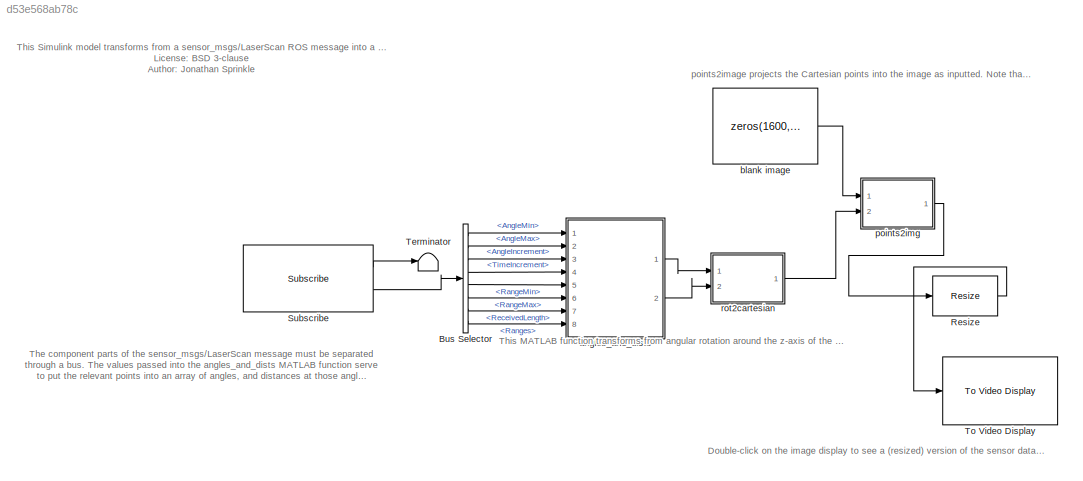
MODEL slx_d53e568ab78c
KIND model
CONFIG AbsTol = auto
CONFIG FixedStep = auto
CONFIG MaxStep = auto
CONFIG MinStep = auto
CONFIG RelTol = 1e-3
CONFIG SampleTimeConstraint = Unconstrained
CONFIG Solver = FixedStepAuto
CONFIG SolverMode = Auto
CONFIG SolverName = FixedStepAuto
CONFIG StartTime = 0.0
CONFIG StopTime = inf
WORKSPACE source: MAT-file member
WORKSPACE SL_ROS_VariableLengthArrays_MaxSizes: struct (value not decoded)
BLOCK [BusSelector] Bus Selector
  OutputSignals = AngleMin,AngleMax,AngleIncrement,TimeIncrement,RangeMin,RangeMax,Ranges_SL_Info.ReceivedLength,Ranges
  Ports = [1, 8]
BLOCK [Reference] Resize  REF=visiongeotforms/Resize
  Ports = [1, 1]
  SourceBlock = visiongeotforms/Resize
  SourceType = Resize
BLOCK [Reference] Subscribe  REF=robotlib/Subscribe
  Ports = [0, 2]
  SourceBlock = robotlib/Subscribe
  SourceLibraryInfo = This block requires Robotics System Toolbox
  SourceType = ROS Subscribe
BLOCK [Terminator] Terminator
BLOCK [Reference] To Video Display  REF=visionsinks/To Video Display
  Ports = [1]
  SourceBlock = visionsinks/To Video Display
  SourceType = To Video Display
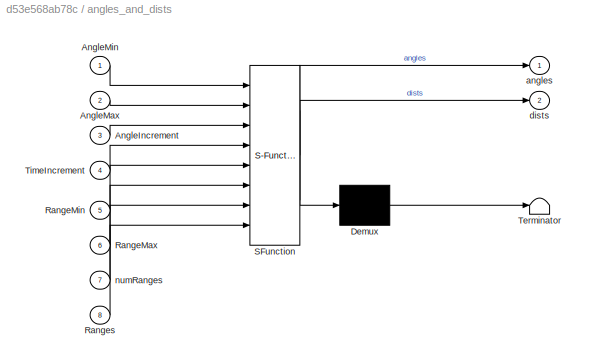
BLOCK [SubSystem] angles_and_dists
  ErrorFcn = Stateflow.Translate.translate
  PermitHierarchicalResolution = ExplicitOnly
  Ports = [8, 2]
  RequestExecContextInheritance = off
  SFBlockType = MATLAB Function
  TreatAsAtomicUnit = on
  Variant = off
BLOCK [Demux] angles_and_dists/ Demux 
  Outputs = 1
  Ports = [1, 1]
BLOCK [S-Function] angles_and_dists/ SFunction 
  EnableBusSupport = on
  FunctionName = sf_sfun
  PortCounts = [8 3]
  Ports = [8, 3]
  SFunctionDeploymentMode = off
  Tag = Stateflow S-Function laserscan2image 2
BLOCK [Terminator] angles_and_dists/ Terminator 
BLOCK [Inport] angles_and_dists/AngleIncrement
  IconDisplay = Port number
  Port = 3
BLOCK [Inport] angles_and_dists/AngleMax
  IconDisplay = Port number
  Port = 2
BLOCK [Inport] angles_and_dists/AngleMin
  IconDisplay = Port number
BLOCK [Inport] angles_and_dists/RangeMax
  IconDisplay = Port number
  Port = 6
BLOCK [Inport] angles_and_dists/RangeMin
  IconDisplay = Port number
  Port = 5
BLOCK [Inport] angles_and_dists/Ranges
  IconDisplay = Port number
  Port = 8
BLOCK [Inport] angles_and_dists/TimeIncrement
  IconDisplay = Port number
  Port = 4
BLOCK [Outport] angles_and_dists/angles
  IconDisplay = Port number
BLOCK [Outport] angles_and_dists/dists
  IconDisplay = Port number
  Port = 2
BLOCK [Inport] angles_and_dists/numRanges
  IconDisplay = Port number
  Port = 7
BLOCK [Constant] blank image
  Value = zeros(1600,800)
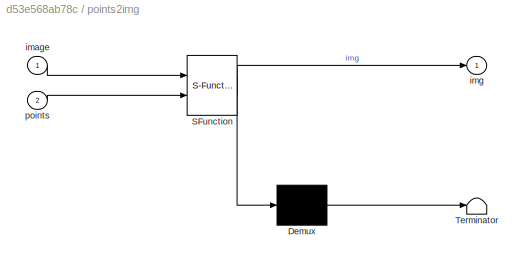
BLOCK [SubSystem] points2img
  ErrorFcn = Stateflow.Translate.translate
  PermitHierarchicalResolution = ExplicitOnly
  Ports = [2, 1]
  RequestExecContextInheritance = off
  SFBlockType = MATLAB Function
  TreatAsAtomicUnit = on
  Variant = off
BLOCK [Demux] points2img/ Demux 
  Outputs = 1
  Ports = [1, 1]
BLOCK [S-Function] points2img/ SFunction 
  EnableBusSupport = on
  FunctionName = sf_sfun
  PortCounts = [2 2]
  Ports = [2, 2]
  SFunctionDeploymentMode = off
  Tag = Stateflow S-Function laserscan2image 3
BLOCK [Terminator] points2img/ Terminator 
BLOCK [Inport] points2img/image
  IconDisplay = Port number
BLOCK [Outport] points2img/img
  IconDisplay = Port number
BLOCK [Inport] points2img/points
  IconDisplay = Port number
  Port = 2
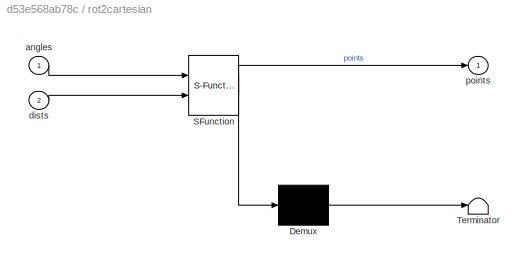
BLOCK [SubSystem] rot2cartesian
  ErrorFcn = Stateflow.Translate.translate
  PermitHierarchicalResolution = ExplicitOnly
  Ports = [2, 1]
  RequestExecContextInheritance = off
  SFBlockType = MATLAB Function
  TreatAsAtomicUnit = on
  Variant = off
BLOCK [Demux] rot2cartesian/ Demux 
  Outputs = 1
  Ports = [1, 1]
BLOCK [S-Function] rot2cartesian/ SFunction 
  EnableBusSupport = on
  FunctionName = sf_sfun
  PortCounts = [2 2]
  Ports = [2, 2]
  SFunctionDeploymentMode = off
  Tag = Stateflow S-Function laserscan2image 1
BLOCK [Terminator] rot2cartesian/ Terminator 
BLOCK [Inport] rot2cartesian/angles
  IconDisplay = Port number
BLOCK [Inport] rot2cartesian/dists
  IconDisplay = Port number
  Port = 2
BLOCK [Outport] rot2cartesian/points
  IconDisplay = Port number
ANNOTATION (root): Double-click on the image display to see a (resized) version of the sensor data as an image.
ANNOTATION (root): The component parts of the sensor_msgs/LaserScan message must be separated through a bus. The values passed into the angles_and_dists MATLAB function serve to put the relevant points into an array of angles, and distances at those angles
ANNOTATION (root): This MATLAB function transforms from angular rotation around the z-axis of the array, to Cartesian coordinates.
ANNOTATION (root): This Simulink model transforms from a sensor_msgs/LaserScan ROS message into a grayscale Simulink image. License: BSD 3-clause Author: Jonathan Sprinkle
ANNOTATION (root): points2image projects the Cartesian points into the image as inputted. Note that the size of the image is not automatically updated from the blank image into the MATLAB script.
LINE Bus Selector:1 -> angles_and_dists:1
LINE Bus Selector:2 -> angles_and_dists:2
LINE Bus Selector:3 -> angles_and_dists:3
LINE Bus Selector:4 -> angles_and_dists:4
LINE Bus Selector:5 -> angles_and_dists:5
LINE Bus Selector:6 -> angles_and_dists:6
LINE Bus Selector:7 -> angles_and_dists:7
LINE Bus Selector:8 -> angles_and_dists:8
LINE Resize:1 -> To Video Display:1
LINE Subscribe:1 -> Terminator:1
LINE Subscribe:2 -> Bus Selector:1
LINE angles_and_dists:1 -> rot2cartesian:1
LINE angles_and_dists:2 -> rot2cartesian:2
LINE blank image:1 -> points2img:1
LINE points2img:1 -> Resize:1
LINE rot2cartesian:1 -> points2img:2
CHART rot2cartesian states=1 transitions=1
  STATE_LABEL 'eML_blk_kernel()'
  STATE_LABEL 'SCRIPT:\nfunction points = fcn(angles,dists)\n%#codegen\n% x values align with "forward" points\nxs = dists.*cos(angles);\n% y values align with left (positive) points\nys = dists.*sin(angles);\npoints = [xs,ys];'
CHART angles_and_dists states=1 transitions=1
  STATE_LABEL 'eML_blk_kernel()'
  STATE_LABEL 'SCRIPT:\nfunction [angles,dists] = fcn(AngleMin, AngleMax, AngleIncrement, ...\n                TimeIncrement, RangeMin, RangeMax, numRanges, Ranges )\n%#codegen\n% this function transforms the laser scan into cartesian coordinates, so\n% that you can use other tools to group them together, make an image, etc.\nif numRanges > 0 \nangleMin = double(AngleMin);\nangleMax = double(AngleMax);\nangleIncrement = ...<+779ch>'
CHART points2img states=1 transitions=1
  STATE_LABEL 'eML_blk_kernel()'
  STATE_LABEL 'SCRIPT:\nfunction img = fcn(image,points)\n%#codegen\nimg = image;\n% we assume we will be getting 180x2 points\nlen=180;\n% the point (0,-20) would, normally, be in the bottom half of the image\n% note: (with +x forward, and +y to the left of the car).\n% But, the bottom half of the image should be +20 more pixels. So, we will\n% instead /subtract/ from 80, all the points. That way, point\npts = points;\n% ...<+797ch>'
